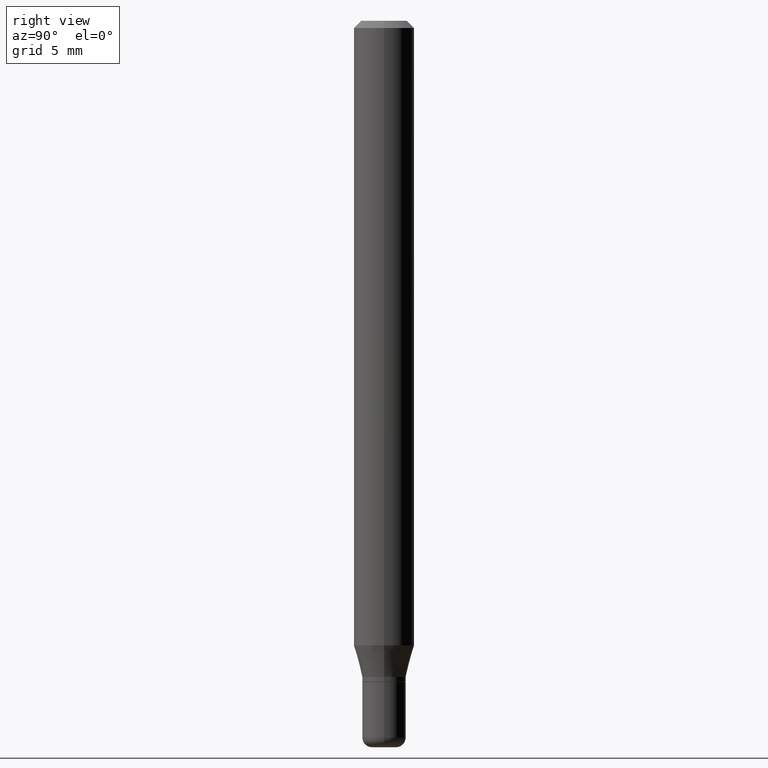
[diagram: clean part render]
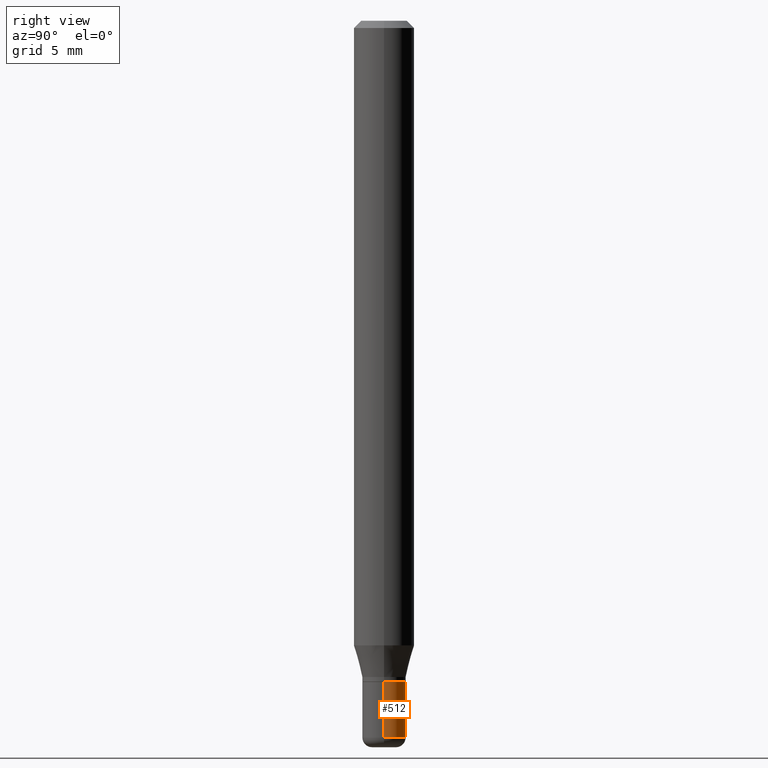
[diagram: same view with one face highlighted and labeled with its STEP entity id]
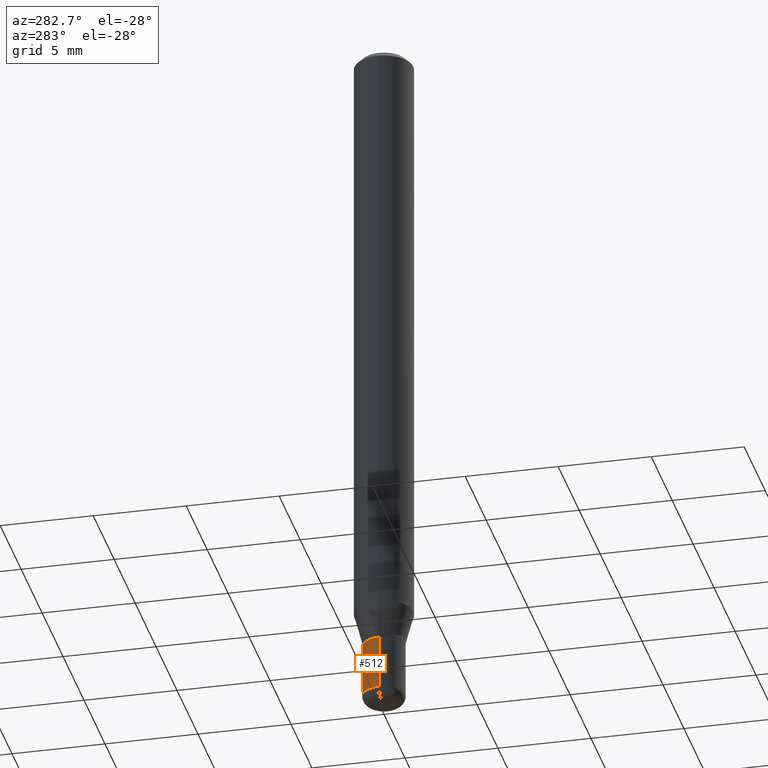
[diagram: same view with one face highlighted and labeled with its STEP entity id]
A machine part, right view. The second image highlights one B-rep face of the part: STEP entity #512.
A second angle (auxiliary view) of the same face is appended — the face is thin or edge-on in the first view.
In plain terms, the highlighted cylindrical surface (edge-blend (fillet) strip) has radius 1.143 mm, axis along (-0, 0, 1).
Its self-contained STEP definition (entity closure, byte-faithful):
#11 = CARTESIAN_POINT ( 'NONE',  ( 0.04499999999999999833, -5.080105348016775756E-15, -1.364999999999999991 ) ) ;
#24 = VECTOR ( 'NONE', #470, 39.37007874015748143 ) ;
#37 = CARTESIAN_POINT ( 'NONE',  ( 3.619293833154002365E-29, -5.167392381487854879E-15, -1.479999999999999982 ) ) ;
#47 = LINE ( 'NONE', #127, #24 ) ;
#69 = VERTEX_POINT ( 'NONE', #261 ) ;
#75 = DIRECTION ( 'NONE',  ( 1.000000000000000000, -6.982962677686269077E-15, 0.000000000000000000 ) ) ;
#119 = ORIENTED_EDGE ( 'NONE', *, *, #128, .T. ) ;
#127 = CARTESIAN_POINT ( 'NONE',  ( -0.04500000000000001221, 3.197442310920451704E-16, -2.213520790614708260E-30 ) ) ;
#128 = EDGE_CURVE ( 'NONE', #297, #256, #425, .T. ) ;
#145 = AXIS2_PLACEMENT_3D ( 'NONE', #153, #464, #75 ) ;
#153 = CARTESIAN_POINT ( 'NONE',  ( 3.338064920442711836E-29, -4.765872027520893280E-15, -1.364999999999999991 ) ) ;
#178 = EDGE_LOOP ( 'NONE', ( #119, #438, #469, #191 ) ) ;
#191 = ORIENTED_EDGE ( 'NONE', *, *, #440, .F. ) ;
#210 = DIRECTION ( 'NONE',  ( -2.445468806185136597E-29, 3.491481338843145583E-15, 1.000000000000000000 ) ) ;
#213 = FACE_OUTER_BOUND ( 'NONE', #178, .T. ) ;
#222 = AXIS2_PLACEMENT_3D ( 'NONE', #37, #459, #303 ) ;
#247 = EDGE_CURVE ( 'NONE', #430, #69, #366, .T. ) ;
#256 = VERTEX_POINT ( 'NONE', #431 ) ;
#261 = CARTESIAN_POINT ( 'NONE',  ( -0.04499999999999999833, -4.646887973412328712E-15, -1.364999999999999991 ) ) ;
#281 = EDGE_CURVE ( 'NONE', #256, #69, #47, .T. ) ;
#285 = CARTESIAN_POINT ( 'NONE',  ( 0.04500000000000003303, -5.481625701983737354E-15, -1.479999999999999982 ) ) ;
#292 = DIRECTION ( 'NONE',  ( 1.000000000000000000, -6.982962677686267499E-15, 4.876176775795935793E-29 ) ) ;
#297 = VERTEX_POINT ( 'NONE', #285 ) ;
#303 = DIRECTION ( 'NONE',  ( 1.000000000000000000, -6.982962677686263555E-15, 0.000000000000000000 ) ) ;
#317 = AXIS2_PLACEMENT_3D ( 'NONE', #363, #210, #292 ) ;
#325 = LINE ( 'NONE', #412, #373 ) ;
#363 = CARTESIAN_POINT ( 'NONE',  ( 0.000000000000000000, 0.000000000000000000, 0.000000000000000000 ) ) ;
#366 = CIRCLE ( 'NONE', #145, 0.04499999999999999833 ) ;
#373 = VECTOR ( 'NONE', #449, 39.37007874015748143 ) ;
#412 = CARTESIAN_POINT ( 'NONE',  ( 0.04500000000000001221, -3.142333204958821302E-16, 2.194279549108171667E-30 ) ) ;
#425 = CIRCLE ( 'NONE', #222, 0.04500000000000003303 ) ;
#430 = VERTEX_POINT ( 'NONE', #11 ) ;
#431 = CARTESIAN_POINT ( 'NONE',  ( -0.04500000000000003303, -4.646887973412328712E-15, -1.479999999999999982 ) ) ;
#438 = ORIENTED_EDGE ( 'NONE', *, *, #281, .T. ) ;
#440 = EDGE_CURVE ( 'NONE', #297, #430, #325, .T. ) ;
#449 = DIRECTION ( 'NONE',  ( -2.445468806185136877E-29, 3.491481338843145188E-15, 1.000000000000000000 ) ) ;
#459 = DIRECTION ( 'NONE',  ( -2.445468806185136597E-29, 3.491481338843145583E-15, 1.000000000000000000 ) ) ;
#464 = DIRECTION ( 'NONE',  ( -2.445468806185136597E-29, 3.491481338843145583E-15, 1.000000000000000000 ) ) ;
#469 = ORIENTED_EDGE ( 'NONE', *, *, #247, .F. ) ;
#470 = DIRECTION ( 'NONE',  ( -2.445468806185136877E-29, 3.491481338843145188E-15, 1.000000000000000000 ) ) ;
#486 = CYLINDRICAL_SURFACE ( 'NONE', #317, 0.04500000000000001221 ) ;
#512 = ADVANCED_FACE ( 'NONE', ( #213 ), #486, .T. ) ;